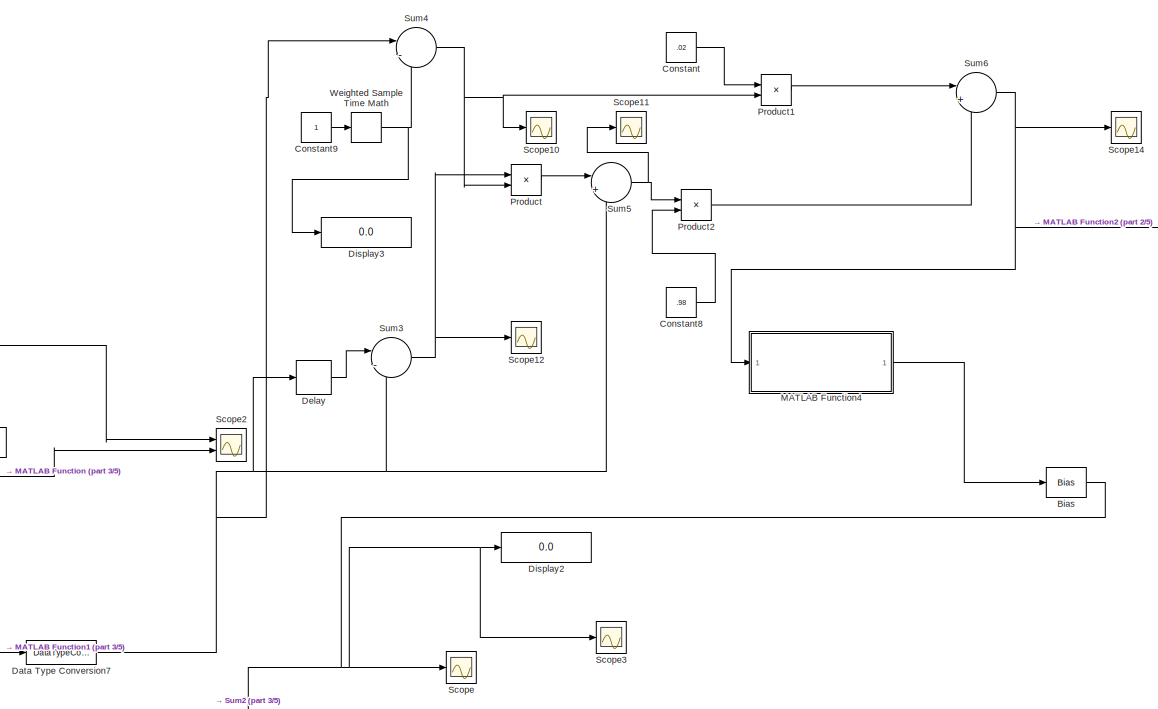
[diagram: root canvas - part 1/5, top center region]
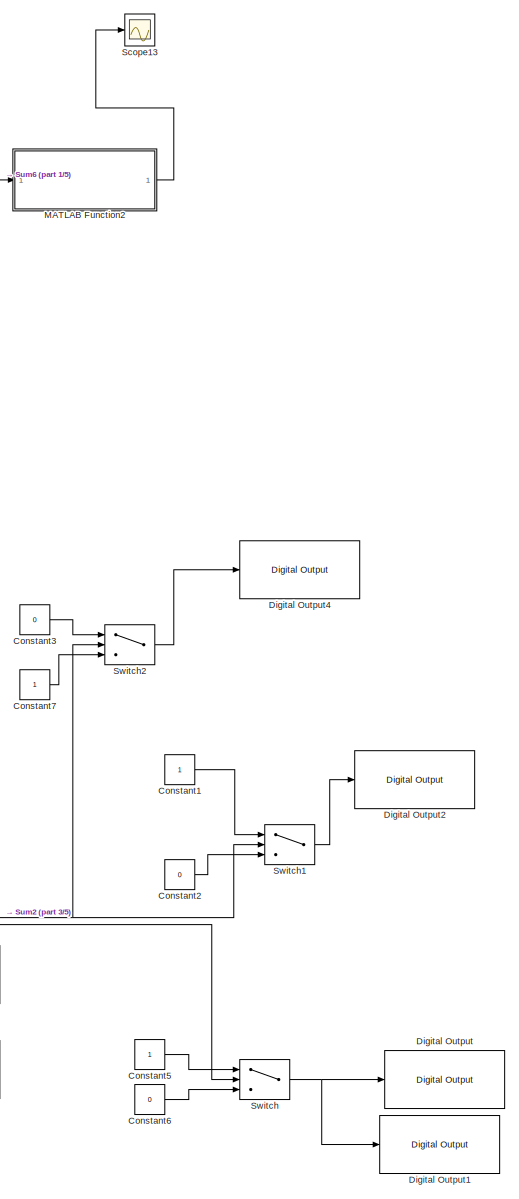
[diagram: root canvas - part 2/5, middle right region]
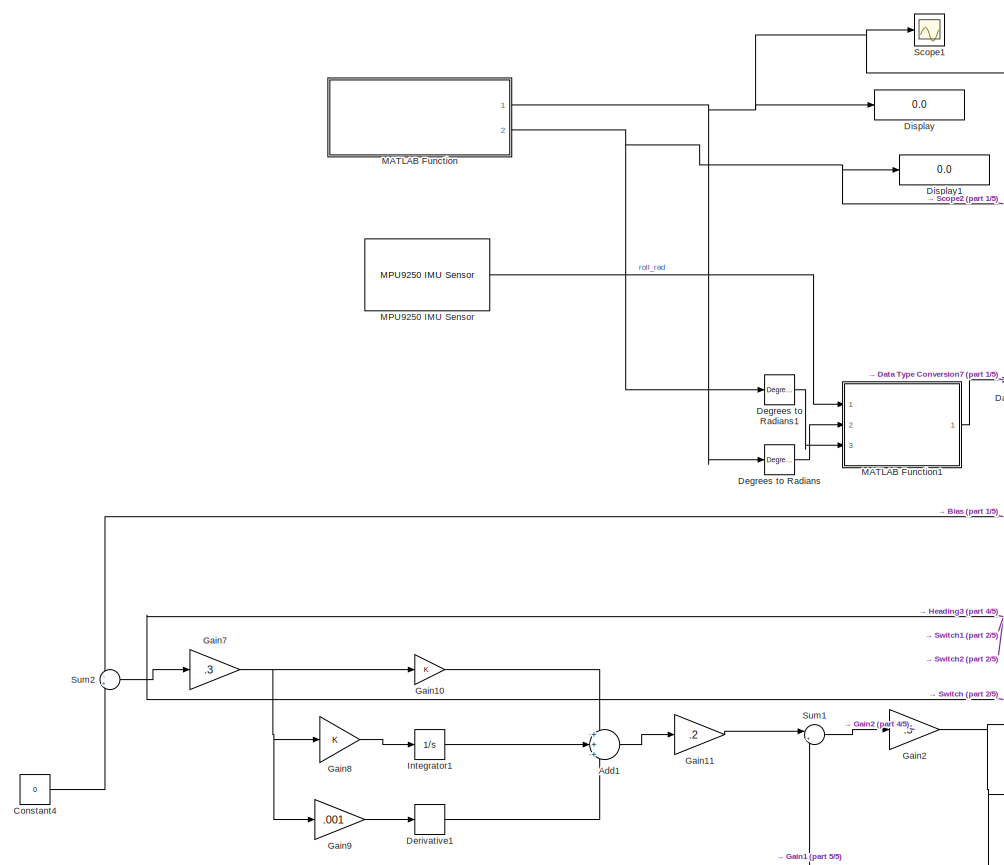
[diagram: root canvas - part 3/5, middle left region]
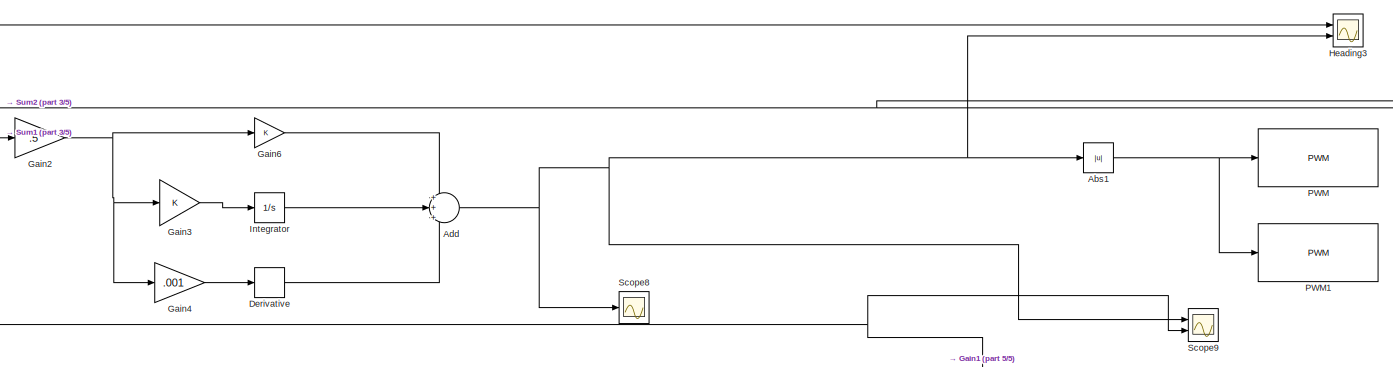
[diagram: root canvas - part 4/5, central region]
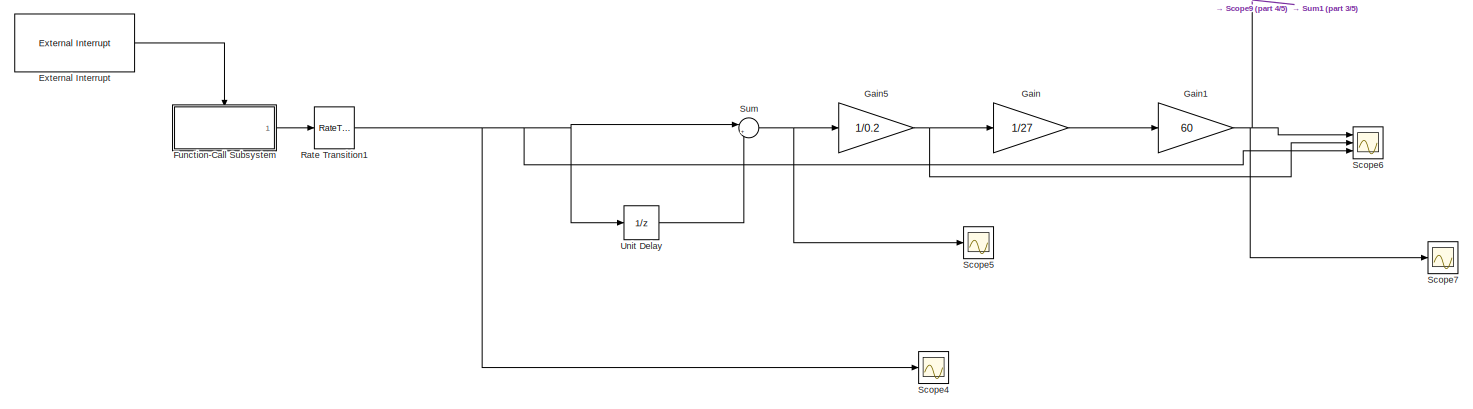
[diagram: root canvas - part 5/5, bottom center region]
MODEL slx_3df812061428
KIND model
CONFIG AbsTol = auto
CONFIG EnableMultiTasking = on
CONFIG FixedStep = auto
CONFIG MaxStep = auto
CONFIG MinStep = auto
CONFIG RelTol = 1e-3
CONFIG SampleTimeConstraint = Unconstrained
CONFIG SolverName = FixedStepAuto
CONFIG StartTime = 0.0
CONFIG StopTime = 200
BLOCK [Abs] Abs1
  SaturateOnIntegerOverflow = off
BLOCK [Sum] Add
  Inputs = +++
  Ports = [3, 1]
BLOCK [Sum] Add1
  Inputs = +++
  Ports = [3, 1]
BLOCK [Bias] Bias
  SaturateOnIntegerOverflow = off
BLOCK [Constant] Constant
  Value = .02
BLOCK [Constant] Constant1
BLOCK [Constant] Constant2
  Value = 0
BLOCK [Constant] Constant3
  Value = 0
BLOCK [Constant] Constant4
  Value = 0
BLOCK [Constant] Constant5
BLOCK [Constant] Constant6
  Value = 0
BLOCK [Constant] Constant7
BLOCK [Constant] Constant8
  Value = .98
BLOCK [Constant] Constant9
BLOCK [DataTypeConversion] Data Type Conversion7
  RndMeth = Floor
  SaturateOnIntegerOverflow = off
BLOCK [Reference] Degrees to Radians  REF=simulink_extras/Transformations/Degrees to
Radians
  Ports = [1, 1]
  SourceBlock = simulink_extras/Transformations/Degrees to\nRadians
  SourceProductBaseCode = SL
  SourceType = DegreesToRadians
BLOCK [Reference] Degrees to Radians1  REF=simulink_extras/Transformations/Degrees to
Radians
  Ports = [1, 1]
  SourceBlock = simulink_extras/Transformations/Degrees to\nRadians
  SourceProductBaseCode = SL
  SourceType = DegreesToRadians
BLOCK [Delay] Delay
  DelayLength = 1
  InputPortMap = u0
  Ports = [1, 1]
BLOCK [Derivative] Derivative
  CoefficientInTFapproximation = .2
BLOCK [Derivative] Derivative1
BLOCK [Reference] Digital Output  REF=arduinolib/Digital Output
  Ports = [1]
  SourceBlock = arduinolib/Digital Output
  SourceProductBaseCode = ARDUINO
  SourceType = Arduino Digital Output
BLOCK [Reference] Digital Output1  REF=arduinolib/Digital Output
  Ports = [1]
  SourceBlock = arduinolib/Digital Output
  SourceProductBaseCode = ARDUINO
  SourceType = Arduino Digital Output
BLOCK [Reference] Digital Output2  REF=arduinolib/Digital Output
  Ports = [1]
  SourceBlock = arduinolib/Digital Output
  SourceProductBaseCode = ARDUINO
  SourceType = Arduino Digital Output
BLOCK [Reference] Digital Output4  REF=arduinolib/Digital Output
  Ports = [1]
  SourceBlock = arduinolib/Digital Output
  SourceProductBaseCode = ARDUINO
  SourceType = Arduino Digital Output
BLOCK [Display] Display
  Decimation = 1
  Ports = [1]
BLOCK [Display] Display1
  Decimation = 1
  Ports = [1]
BLOCK [Display] Display2
  Decimation = 1
  Ports = [1]
BLOCK [Display] Display3
  Decimation = 1
  Ports = [1]
BLOCK [Reference] External Interrupt  REF=arduinolib/External Interrupt
  Ports = [0, 1]
  SourceBlock = arduinolib/External Interrupt
  SourceProductBaseCode = ARDUINO
  SourceType = Arduino Interrupt Block
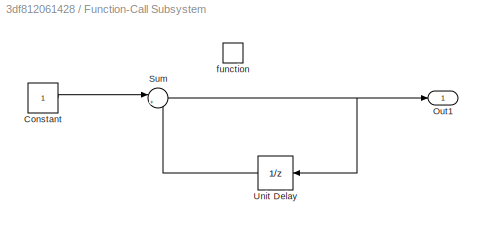
BLOCK [SubSystem] Function-Call Subsystem
  Ports = [0, 1, 0, 1]
  RequestExecContextInheritance = off
  TreatAsAtomicUnit = on
BLOCK [Constant] Function-Call Subsystem/Constant
  SampleTime = -1
BLOCK [Outport] Function-Call Subsystem/Out1
  VectorParamsAs1DForOutWhenUnconnected = off
BLOCK [Sum] Function-Call Subsystem/Sum
  Inputs = |++
  Ports = [2, 1]
BLOCK [UnitDelay] Function-Call Subsystem/Unit Delay
  HasFrameUpgradeWarning = on
  SampleTime = -1
BLOCK [TriggerPort] Function-Call Subsystem/function
  Ports = []
  StatesWhenEnabling = held
  TriggerType = function-call
  VariantControl = (inherit)
BLOCK [Gain] Gain
  Gain = 1/27
BLOCK [Gain] Gain1
  Gain = 60
BLOCK [Gain] Gain10
BLOCK [Gain] Gain11
  Gain = .2
BLOCK [Gain] Gain2
  Gain = .5
BLOCK [Gain] Gain3
BLOCK [Gain] Gain4
  Gain = .001
BLOCK [Gain] Gain5
  Gain = 1/0.2
BLOCK [Gain] Gain6
BLOCK [Gain] Gain7
  Gain = .3
BLOCK [Gain] Gain8
BLOCK [Gain] Gain9
  Gain = .001
BLOCK [Scope] Heading3
  Floating = off
  NumInputPorts = 2
  Ports = [2]
  ScopeSpecificationString = Simulink.scopes.TimeScopeBlockCfg('CurrentConfiguration', extmgr.ConfigurationSet(extmgr.Configuration('Core','General UI',true),extmgr.Configuration('Core','Source UI',true),extmgr.Configuration('Sources','WiredSimulink',true,'DataLoggingVariableName','ScopeData3'),extmgr.Configuration('Visuals','Time Domain',true,'SerializedDisplays',{struct('MinYLimReal','25.64152','MaxYLimReal','29.39154','YLa...<+1465ch>
BLOCK [Integrator] Integrator
  Ports = [1, 1]
BLOCK [Integrator] Integrator1
  Ports = [1, 1]
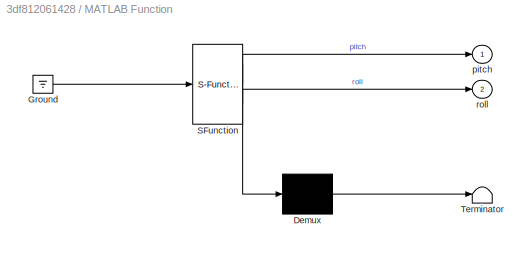
BLOCK [SubSystem] MATLAB Function
  ErrorFcn = Stateflow.Translate.translate
  PermitHierarchicalResolution = ExplicitOnly
  Ports = [0, 2]
  RequestExecContextInheritance = off
  SFBlockType = MATLAB Function
  SystemSampleTime = 1/100
  TreatAsAtomicUnit = on
BLOCK [Demux] MATLAB Function/ Demux 
  Outputs = 1
  Ports = [1, 1]
BLOCK [Ground] MATLAB Function/ Ground 
BLOCK [S-Function] MATLAB Function/ SFunction 
  EnableBusSupport = on
  FunctionName = sf_sfun
  PortCounts = [1 3]
  Ports = [1, 3]
  SFcnIsStateOwnerBlock = off
  SFunctionDeploymentMode = off
  Tag = Stateflow S-Function 2
BLOCK [Terminator] MATLAB Function/ Terminator 
BLOCK [Outport] MATLAB Function/pitch
BLOCK [Outport] MATLAB Function/roll
  Port = 2
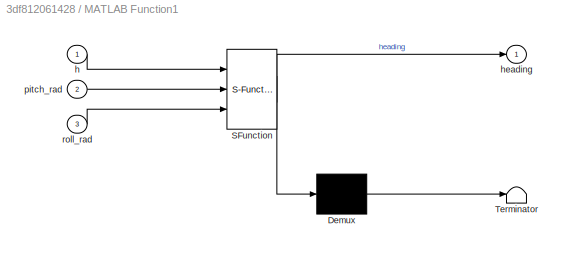
BLOCK [SubSystem] MATLAB Function1
  ErrorFcn = Stateflow.Translate.translate
  PermitHierarchicalResolution = ExplicitOnly
  Ports = [3, 1]
  RequestExecContextInheritance = off
  SFBlockType = MATLAB Function
  TreatAsAtomicUnit = on
BLOCK [Demux] MATLAB Function1/ Demux 
  Outputs = 1
  Ports = [1, 1]
BLOCK [S-Function] MATLAB Function1/ SFunction 
  EnableBusSupport = on
  FunctionName = sf_sfun
  PortCounts = [3 2]
  Ports = [3, 2]
  SFcnIsStateOwnerBlock = off
  SFunctionDeploymentMode = off
  Tag = Stateflow S-Function 6
BLOCK [Terminator] MATLAB Function1/ Terminator 
BLOCK [Inport] MATLAB Function1/h
BLOCK [Outport] MATLAB Function1/heading
BLOCK [Inport] MATLAB Function1/pitch_rad
  Port = 2
BLOCK [Inport] MATLAB Function1/roll_rad
  Port = 3
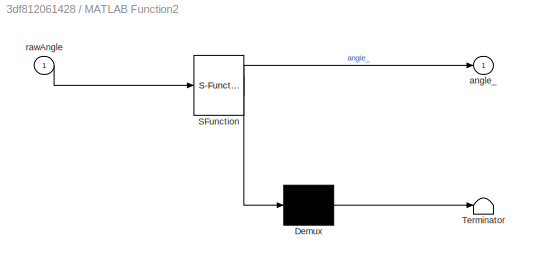
BLOCK [SubSystem] MATLAB Function2
  ErrorFcn = Stateflow.Translate.translate
  PermitHierarchicalResolution = ExplicitOnly
  Ports = [1, 1]
  RequestExecContextInheritance = off
  SFBlockType = MATLAB Function
  TreatAsAtomicUnit = on
BLOCK [Demux] MATLAB Function2/ Demux 
  Outputs = 1
  Ports = [1, 1]
BLOCK [S-Function] MATLAB Function2/ SFunction 
  EnableBusSupport = on
  FunctionName = sf_sfun
  PortCounts = [1 2]
  Ports = [1, 2]
  SFcnIsStateOwnerBlock = off
  SFunctionDeploymentMode = off
  Tag = Stateflow S-Function 1
BLOCK [Terminator] MATLAB Function2/ Terminator 
BLOCK [Outport] MATLAB Function2/angle_
BLOCK [Inport] MATLAB Function2/rawAngle
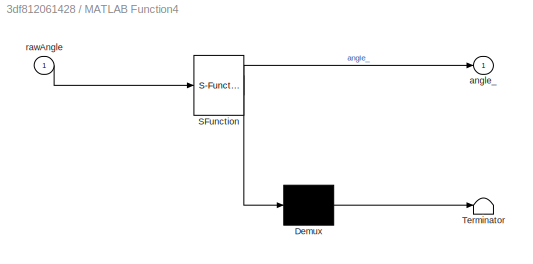
BLOCK [SubSystem] MATLAB Function4
  ErrorFcn = Stateflow.Translate.translate
  PermitHierarchicalResolution = ExplicitOnly
  Ports = [1, 1]
  RequestExecContextInheritance = off
  SFBlockType = MATLAB Function
  TreatAsAtomicUnit = on
BLOCK [Demux] MATLAB Function4/ Demux 
  Outputs = 1
  Ports = [1, 1]
BLOCK [S-Function] MATLAB Function4/ SFunction 
  EnableBusSupport = on
  FunctionName = sf_sfun
  PortCounts = [1 2]
  Ports = [1, 2]
  SFcnIsStateOwnerBlock = off
  SFunctionDeploymentMode = off
  Tag = Stateflow S-Function 9
BLOCK [Terminator] MATLAB Function4/ Terminator 
BLOCK [Outport] MATLAB Function4/angle_
BLOCK [Inport] MATLAB Function4/rawAngle
BLOCK [Reference] MPU9250 IMU Sensor  REF=arduinosensorlib/MPU9250 IMU Sensor
  Ports = [0, 1]
  SourceBlock = arduinosensorlib/MPU9250 IMU Sensor
  SourceProductBaseCode = ARDUINO
  SourceType = Arduino MPU9250
BLOCK [Reference] PWM  REF=arduinolib/PWM
  Ports = [1]
  SourceBlock = arduinolib/PWM
  SourceProductBaseCode = ARDUINO
  SourceType = Arduino PWM
BLOCK [Reference] PWM1  REF=arduinolib/PWM
  Ports = [1]
  SourceBlock = arduinolib/PWM
  SourceProductBaseCode = ARDUINO
  SourceType = Arduino PWM
BLOCK [Product] Product
  Ports = [2, 1]
BLOCK [Product] Product1
  Ports = [2, 1]
BLOCK [Product] Product2
  Ports = [2, 1]
BLOCK [RateTransition] Rate Transition1
  Deterministic = off
BLOCK [Scope] Scope
  Floating = off
  NumInputPorts = 1
  Ports = [1]
  ScopeSpecificationString = Simulink.scopes.TimeScopeBlockCfg('CurrentConfiguration', extmgr.ConfigurationSet(extmgr.Configuration('Core','General UI',true),extmgr.Configuration('Core','Source UI',true),extmgr.Configuration('Sources','WiredSimulink',true,'DataLoggingVariableName','ScopeData4'),extmgr.Configuration('Visuals','Time Domain',true,'SerializedDisplays',{struct('MinYLimReal','-43.95411','MaxYLimReal','404.4604','YL...<+1415ch>
BLOCK [Scope] Scope1
  Floating = off
  NumInputPorts = 1
  Ports = [1]
  ScopeSpecificationString = Simulink.scopes.TimeScopeBlockCfg('CurrentConfiguration', extmgr.ConfigurationSet(extmgr.Configuration('Core','General UI',true),extmgr.Configuration('Core','Source UI',true),extmgr.Configuration('Sources','WiredSimulink',true,'DataLoggingVariableName','ScopeData5'),extmgr.Configuration('Visuals','Time Domain',true),extmgr.Configuration('Tools','Plot Navigation',true),extmgr.Configuration('Tools',...<+40ch>
BLOCK [Scope] Scope10
  Floating = off
  NumInputPorts = 1
  Ports = [1]
  ScopeSpecificationString = Simulink.scopes.TimeScopeBlockCfg('CurrentConfiguration', extmgr.ConfigurationSet(extmgr.Configuration('Core','General UI',true),extmgr.Configuration('Core','Source UI',true),extmgr.Configuration('Sources','WiredSimulink',true,'DataLoggingVariableName','ScopeData1'),extmgr.Configuration('Visuals','Time Domain',true,'SerializedDisplays',{struct('MinYLimReal','-0.04905','MaxYLimReal','0.04589','YLab...<+1409ch>
BLOCK [Scope] Scope11
  Floating = off
  NumInputPorts = 1
  Ports = [1]
  ScopeSpecificationString = Simulink.scopes.TimeScopeBlockCfg('CurrentConfiguration', extmgr.ConfigurationSet(extmgr.Configuration('Core','General UI',true),extmgr.Configuration('Core','Source UI',true),extmgr.Configuration('Sources','WiredSimulink',true,'DataLoggingVariableName','ScopeData2'),extmgr.Configuration('Visuals','Time Domain',true,'SerializedDisplays',{struct('MinYLimReal','-0.03718','MaxYLimReal','0.05753','YLab...<+1409ch>
BLOCK [Scope] Scope12
  Floating = off
  NumInputPorts = 1
  Ports = [1]
  ScopeSpecificationString = Simulink.scopes.TimeScopeBlockCfg('CurrentConfiguration', extmgr.ConfigurationSet(extmgr.Configuration('Core','General UI',true),extmgr.Configuration('Core','Source UI',true),extmgr.Configuration('Sources','WiredSimulink',true,'DataLoggingVariableName','ScopeData13'),extmgr.Configuration('Visuals','Time Domain',true,'SerializedDisplays',{struct('MinYLimReal','-4.75408','MaxYLimReal','7.38185','YLa...<+1410ch>
BLOCK [Scope] Scope13
  Floating = off
  NumInputPorts = 1
  Ports = [1]
  ScopeSpecificationString = Simulink.scopes.TimeScopeBlockCfg('CurrentConfiguration', extmgr.ConfigurationSet(extmgr.Configuration('Core','General UI',true),extmgr.Configuration('Core','Source UI',true),extmgr.Configuration('Sources','WiredSimulink',true,'DataLoggingVariableName','ScopeData14'),extmgr.Configuration('Visuals','Time Domain',true,'SerializedDisplays',{struct('MinYLimReal','-44.89586','MaxYLimReal','404.5083','Y...<+1428ch>
BLOCK [Scope] Scope14
  Floating = off
  NumInputPorts = 1
  Ports = [1]
  ScopeSpecificationString = Simulink.scopes.TimeScopeBlockCfg('CurrentConfiguration', extmgr.ConfigurationSet(extmgr.Configuration('Core','General UI',true),extmgr.Configuration('Core','Source UI',true),extmgr.Configuration('Sources','WiredSimulink',true,'DataLoggingVariableName','ScopeData15'),extmgr.Configuration('Visuals','Time Domain',true,'SerializedDisplays',{struct('MinYLimReal','-0.26098','MaxYLimReal','0.88288','YLa...<+1436ch>
BLOCK [Scope] Scope2
  Floating = off
  NumInputPorts = 2
  Ports = [2]
  ScopeSpecificationString = Simulink.scopes.TimeScopeBlockCfg('CurrentConfiguration', extmgr.ConfigurationSet(extmgr.Configuration('Core','General UI',true),extmgr.Configuration('Core','Source UI',true),extmgr.Configuration('Sources','WiredSimulink',true,'DataLoggingVariableName','ScopeData6'),extmgr.Configuration('Visuals','Time Domain',true,'SerializedDisplays',{struct('MinYLimReal','-2.44839','MaxYLimReal','1.91801','YLab...<+1430ch>
BLOCK [Scope] Scope3
  Floating = off
  NumInputPorts = 1
  Ports = [1]
  ScopeSpecificationString = Simulink.scopes.TimeScopeBlockCfg('CurrentConfiguration', extmgr.ConfigurationSet(extmgr.Configuration('Core','General UI',true),extmgr.Configuration('Core','Source UI',true),extmgr.Configuration('Sources','WiredSimulink',true,'DataLoggingVariableName','ScopeData7'),extmgr.Configuration('Visuals','Time Domain',true,'SerializedDisplays',{struct('MinYLimReal','-44.89586','MaxYLimReal','404.5083','YL...<+1415ch>
BLOCK [Scope] Scope4
  Floating = off
  NumInputPorts = 1
  Ports = [1]
  ScopeSpecificationString = Simulink.scopes.TimeScopeBlockCfg('CurrentConfiguration', extmgr.ConfigurationSet(extmgr.Configuration('Core','General UI',true),extmgr.Configuration('Core','Source UI',true),extmgr.Configuration('Sources','WiredSimulink',true,'DataLoggingSaveFormat','Array','DataLoggingLimitDataPoints',true,'DataLoggingDecimation','1','DataLoggingVariableName','ScopeData8'),extmgr.Configuration('Visuals','Time Do...<+1697ch>
BLOCK [Scope] Scope5
  Floating = off
  NumInputPorts = 1
  Ports = [1]
  ScopeSpecificationString = Simulink.scopes.TimeScopeBlockCfg('CurrentConfiguration', extmgr.ConfigurationSet(extmgr.Configuration('Core','General UI',true),extmgr.Configuration('Core','Source UI',true),extmgr.Configuration('Sources','WiredSimulink',true,'DataLoggingSaveFormat','Array','DataLoggingLimitDataPoints',true,'DataLoggingDecimation','1','DataLoggingVariableName','ScopeData9'),extmgr.Configuration('Visuals','Time Do...<+1614ch>
BLOCK [Scope] Scope6
  Floating = off
  NumInputPorts = 3
  Ports = [3]
  ScopeSpecificationString = Simulink.scopes.TimeScopeBlockCfg('CurrentConfiguration', extmgr.ConfigurationSet(extmgr.Configuration('Core','General UI',true),extmgr.Configuration('Core','Source UI',true),extmgr.Configuration('Sources','WiredSimulink',true,'DataLoggingSaveFormat','Array','DataLoggingLimitDataPoints',true,'DataLoggingDecimation','1','DataLoggingVariableName','ScopeData10'),extmgr.Configuration('Visuals','Time D...<+1681ch>
BLOCK [Scope] Scope7
  Floating = off
  NumInputPorts = 1
  Ports = [1]
  ScopeSpecificationString = Simulink.scopes.TimeScopeBlockCfg('CurrentConfiguration', extmgr.ConfigurationSet(extmgr.Configuration('Core','General UI',true),extmgr.Configuration('Core','Source UI',true),extmgr.Configuration('Sources','WiredSimulink',true,'DataLoggingVariableName','ScopeData11'),extmgr.Configuration('Visuals','Time Domain',true,'SerializedDisplays',{struct('MinYLimReal','-435.55556','MaxYLimReal','8675.55556'...<+1410ch>
BLOCK [Scope] Scope8
  Floating = off
  NumInputPorts = 1
  Ports = [1]
  ScopeSpecificationString = Simulink.scopes.TimeScopeBlockCfg('CurrentConfiguration', extmgr.ConfigurationSet(extmgr.Configuration('Core','General UI',true),extmgr.Configuration('Core','Source UI',true),extmgr.Configuration('Sources','WiredSimulink',true,'DataLoggingSaveFormat','Array','DataLoggingLimitDataPoints',true,'DataLoggingDecimation','1','DataLoggingVariableName','ScopeData12'),extmgr.Configuration('Visuals','Time D...<+1689ch>
BLOCK [Scope] Scope9
  Floating = off
  NumInputPorts = 2
  Ports = [2]
  ScopeSpecificationString = Simulink.scopes.TimeScopeBlockCfg('CurrentConfiguration', extmgr.ConfigurationSet(extmgr.Configuration('Core','General UI',true),extmgr.Configuration('Core','Source UI',true),extmgr.Configuration('Sources','WiredSimulink',true,'DataLoggingSaveFormat','Array','DataLoggingLimitDataPoints',true,'DataLoggingDecimation','1'),extmgr.Configuration('Visuals','Time Domain',true,'SerializedDisplays',{struct...<+1669ch>
BLOCK [Sum] Sum
  Inputs = |+-
  Ports = [2, 1]
BLOCK [Sum] Sum1
  Inputs = |+-
  Ports = [2, 1]
BLOCK [Sum] Sum2
  Inputs = -+
  Ports = [2, 1]
BLOCK [Sum] Sum3
  Inputs = |-+
  Ports = [2, 1]
BLOCK [Sum] Sum4
  Inputs = |-+
  Ports = [2, 1]
BLOCK [Sum] Sum5
  Inputs = |++
  Ports = [2, 1]
BLOCK [Sum] Sum6
  Inputs = |++
  Ports = [2, 1]
BLOCK [Switch] Switch
  Criteria = u2 > Threshold
  InputSameDT = off
  SaturateOnIntegerOverflow = off
BLOCK [Switch] Switch1
  Criteria = u2 > Threshold
  InputSameDT = off
  SaturateOnIntegerOverflow = off
BLOCK [Switch] Switch2
  Criteria = u2 > Threshold
  InputSameDT = off
  SaturateOnIntegerOverflow = off
BLOCK [UnitDelay] Unit Delay
  HasFrameUpgradeWarning = on
  SampleTime = -1
BLOCK [SampleTimeMath] Weighted Sample Time Math
  TsampMathOp = *
NET Abs1:1 -> PWM1:1, PWM:1
LINE Add1:1 -> Gain11:1
NET Add:1 -> Abs1:1, Heading3:2, Scope8:1, Scope9:1
NET Bias:1 -> Display2:1, Scope3:1, Scope:1, Sum2:1
LINE Constant1:1 -> Switch1:1
LINE Constant2:1 -> Switch1:3
LINE Constant3:1 -> Switch2:1
LINE Constant4:1 -> Sum2:2
LINE Constant5:1 -> Switch:1
LINE Constant6:1 -> Switch:3
LINE Constant7:1 -> Switch2:3
LINE Constant8:1 -> Product2:2
LINE Constant9:1 -> Weighted Sample Time Math:1
LINE Constant:1 -> Product1:1
NET Data Type Conversion7:1 -> Delay:1, Sum3:2, Sum4:1, Sum5:2
LINE Degrees to Radians1:1 -> MATLAB Function1:3
LINE Degrees to Radians:1 -> MATLAB Function1:2
LINE Delay:1 -> Sum3:1
LINE Derivative1:1 -> Add1:3
LINE Derivative:1 -> Add:3
LINE External Interrupt:1 -> Function-Call Subsystem:trigger
LINE Function-Call Subsystem/Constant:1 -> Function-Call Subsystem/Sum:1
NET Function-Call Subsystem/Sum:1 -> Function-Call Subsystem/Out1:1, Function-Call Subsystem/Unit Delay:1
LINE Function-Call Subsystem/Unit Delay:1 -> Function-Call Subsystem/Sum:2
LINE Function-Call Subsystem:1 -> Rate Transition1:1
LINE Gain10:1 -> Add1:1
LINE Gain11:1 -> Sum1:1
NET Gain1:1 -> Scope6:1, Scope7:1, Scope9:2, Sum1:2
NET Gain2:1 -> Gain3:1, Gain4:1, Gain6:1
LINE Gain3:1 -> Integrator:1
LINE Gain4:1 -> Derivative:1
NET Gain5:1 -> Gain:1, Scope6:2
LINE Gain6:1 -> Add:1
NET Gain7:1 -> Gain10:1, Gain8:1, Gain9:1
LINE Gain8:1 -> Integrator1:1
LINE Gain9:1 -> Derivative1:1
LINE Gain:1 -> Gain1:1
LINE Integrator1:1 -> Add1:2
LINE Integrator:1 -> Add:2
LINE MATLAB Function1:1 -> Data Type Conversion7:1
LINE MATLAB Function2:1 -> Scope13:1
LINE MATLAB Function4:1 -> Bias:1
NET MATLAB Function:1 -> Degrees to Radians:1, Display:1, Scope1:1, Scope2:1
NET MATLAB Function:2 -> Degrees to Radians1:1, Display1:1, Scope2:2
LINE MPU9250 IMU Sensor:1 -> MATLAB Function1:1
LINE Product1:1 -> Sum6:1
LINE Product2:1 -> Sum6:2
LINE Product:1 -> Sum5:1
NET Rate Transition1:1 -> Scope4:1, Scope6:3, Sum:1, Unit Delay:1
LINE Sum1:1 -> Gain2:1
NET Sum2:1 -> Gain7:1, Heading3:1, Switch1:2, Switch2:2, Switch:2
NET Sum3:1 -> Product:1, Scope12:1
NET Sum4:1 -> Product1:2, Product:2, Scope10:1
NET Sum5:1 -> Product2:1, Scope11:1
NET Sum6:1 -> MATLAB Function2:1, MATLAB Function4:1, Scope14:1
NET Sum:1 -> Gain5:1, Scope5:1
LINE Switch1:1 -> Digital Output2:1
LINE Switch2:1 -> Digital Output4:1
NET Switch:1 -> Digital Output1:1, Digital Output:1
LINE Unit Delay:1 -> Sum:2
NET Weighted Sample Time Math:1 -> Display3:1, Sum4:2
note: NET lines group one-source signal fan-out (src -> all destinations, sorted); 1:1 wires keep LINE
CHART MATLAB Function2 states=1 transitions=1
  STATE_LABEL 'eML_blk_kernel()'
  STATE_LABEL 'SCRIPT:\nfunction angle_ = constrainerHeading(rawAngle)\nangle_ = rawAngle;\n    if rawAngle > 360 \n        angle_ = rawAngle - 360;\n    elseif angle_ < 0\n       angle_ =  rawAngle + 360;\n    end\nend'
CHART MATLAB Function states=1 transitions=1
  STATE_LABEL 'eML_blk_kernel()'
  STATE_LABEL 'SCRIPT:\nfunction [pitch, roll] = calculatePitchRoll()\n\n% This function reads acceleration and angular velocity from an IMU sensor\n% and calculates its orientation by finding out pitch and roll. In this\n% application MPU9250 sensor is used. However, it could be replaced with\n% any other IMU sensor as well.\n\npersistent arduinoObj imuObj\npersistent prevTimestamp\npersistent pitchAngle rollAngle\npersis...<+2466ch>'
CHART MATLAB Function1 states=1 transitions=1
  STATE_LABEL 'eML_blk_kernel()'
  STATE_LABEL "SCRIPT:\nfunction heading = mag2Heading(h,pitch_rad,roll_rad)\n\n h = normalize(h,'norm');\n mag_x = h(1)*cos(pitch_rad) + h(2)*sin(roll_rad)*sin(pitch_rad) + h(3)*cos(roll_rad)*sin(pitch_rad);\n mag_y = h(2) * cos(roll_rad) - h(3) * sin(roll_rad);\n yawAngle = 180 * atan2(-mag_y,mag_x)/pi;\n \n heading = yawAngle;\n"
CHART MATLAB Function4 states=1 transitions=1
  STATE_LABEL 'eML_blk_kernel()'
  STATE_LABEL 'SCRIPT:\nfunction angle_ = constrainerHeading(rawAngle)\nangle_ = rawAngle;\n    if rawAngle > 360 \n        angle_ = rawAngle - 360;\n    elseif angle_ < 0\n       angle_ =  rawAngle + 360;\n    end\nend'
CHART  states=0 transitions=0
CHART  states=0 transitions=0
CHART  states=0 transitions=0
CHART  states=0 transitions=0
